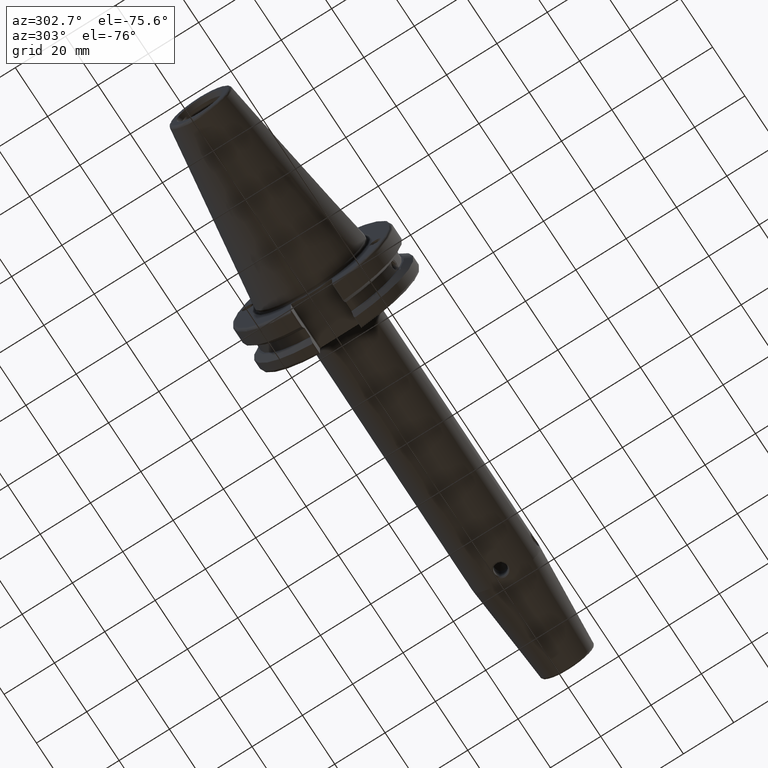
[diagram: clean part render]
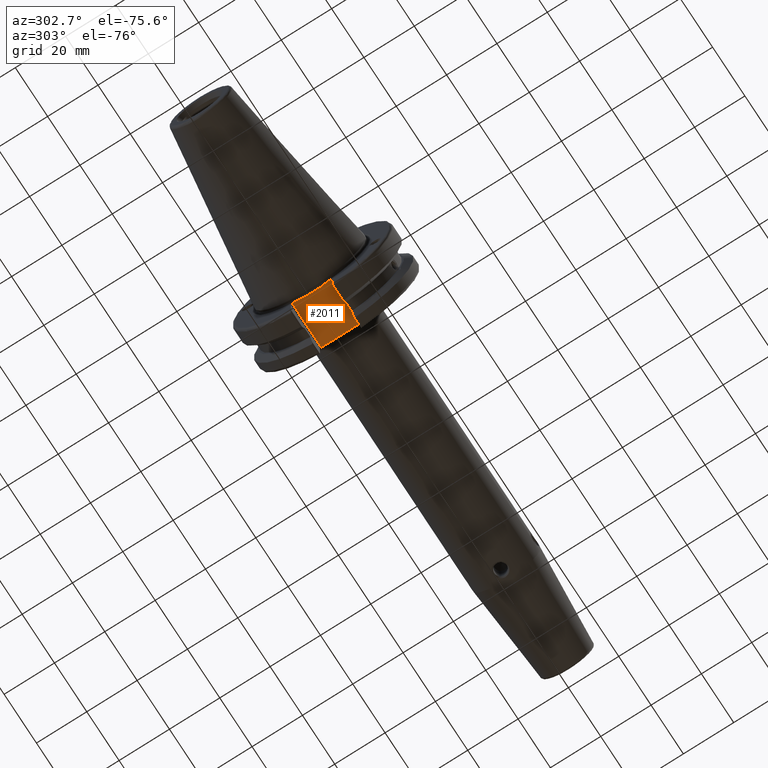
[diagram: same view with one face highlighted and labeled with its STEP entity id]
A machine part, auxiliary view. The second image highlights one B-rep face of the part: STEP entity #2011.
In plain terms, the highlighted planar face has unit normal (0, 0, 1).
Its self-contained STEP definition (entity closure, byte-faithful):
#28=(
BOUNDED_CURVE()
B_SPLINE_CURVE(2,(#4623,#4624,#4625),.UNSPECIFIED.,.F.,.F.)
B_SPLINE_CURVE_WITH_KNOTS((3,3),(0.,0.339841691449478),.UNSPECIFIED.)
CURVE()
GEOMETRIC_REPRESENTATION_ITEM()
RATIONAL_B_SPLINE_CURVE((1.,1.00266518417082,1.))
REPRESENTATION_ITEM('')
);
#29=(
BOUNDED_CURVE()
B_SPLINE_CURVE(2,(#4628,#4629,#4630),.UNSPECIFIED.,.F.,.F.)
B_SPLINE_CURVE_WITH_KNOTS((3,3),(0.,0.339841691449478),.UNSPECIFIED.)
CURVE()
GEOMETRIC_REPRESENTATION_ITEM()
RATIONAL_B_SPLINE_CURVE((1.,1.00266518417082,1.))
REPRESENTATION_ITEM('')
);
#74=PLANE('',#2235);
#232=FACE_OUTER_BOUND('',#365,.T.);
#365=EDGE_LOOP('',(#1747,#1748,#1749,#1750,#1751,#1752,#1753,#1754));
#427=LINE('',#3920,#544);
#490=LINE('',#4595,#607);
#491=LINE('',#4599,#608);
#495=LINE('',#4619,#612);
#496=LINE('',#4621,#613);
#497=LINE('',#4627,#614);
#544=VECTOR('',#2405,10.);
#607=VECTOR('',#2692,10.);
#608=VECTOR('',#2695,10.);
#612=VECTOR('',#2721,10.);
#613=VECTOR('',#2724,10.);
#614=VECTOR('',#2725,10.);
#839=VERTEX_POINT('',#3917);
#840=VERTEX_POINT('',#3919);
#957=VERTEX_POINT('',#4592);
#958=VERTEX_POINT('',#4594);
#959=VERTEX_POINT('',#4596);
#960=VERTEX_POINT('',#4598);
#966=VERTEX_POINT('',#4622);
#967=VERTEX_POINT('',#4626);
#1061=EDGE_CURVE('',#839,#840,#427,.T.);
#1231=EDGE_CURVE('',#957,#958,#490,.T.);
#1233=EDGE_CURVE('',#959,#960,#491,.T.);
#1243=EDGE_CURVE('',#840,#957,#495,.T.);
#1244=EDGE_CURVE('',#960,#839,#496,.T.);
#1245=EDGE_CURVE('',#966,#959,#28,.T.);
#1246=EDGE_CURVE('',#967,#966,#497,.T.);
#1247=EDGE_CURVE('',#958,#967,#29,.T.);
#1747=ORIENTED_EDGE('',*,*,#1243,.F.);
#1748=ORIENTED_EDGE('',*,*,#1061,.F.);
#1749=ORIENTED_EDGE('',*,*,#1244,.F.);
#1750=ORIENTED_EDGE('',*,*,#1233,.F.);
#1751=ORIENTED_EDGE('',*,*,#1245,.F.);
#1752=ORIENTED_EDGE('',*,*,#1246,.F.);
#1753=ORIENTED_EDGE('',*,*,#1247,.F.);
#1754=ORIENTED_EDGE('',*,*,#1231,.F.);
#2011=ADVANCED_FACE('',(#232),#74,.F.);
#2235=AXIS2_PLACEMENT_3D('',#4620,#2722,#2723);
#2405=DIRECTION('',(0.,1.,0.));
#2692=DIRECTION('',(0.,-1.,0.));
#2695=DIRECTION('',(0.,-1.,0.));
#2721=DIRECTION('',(-1.,-1.16558847729675E-16,0.));
#2722=DIRECTION('center_axis',(0.,0.,1.));
#2723=DIRECTION('ref_axis',(1.,0.,0.));
#2724=DIRECTION('',(1.,0.,0.));
#2725=DIRECTION('',(0.,-1.,0.));
#3917=CARTESIAN_POINT('',(19.05,-7.69,-22.6));
#3919=CARTESIAN_POINT('',(19.05,7.69,-22.6));
#3920=CARTESIAN_POINT('',(19.05,-2.77555756156289E-16,-22.6));
#4592=CARTESIAN_POINT('',(1.,7.69,-22.6));
#4594=CARTESIAN_POINT('',(0.999999999999997,6.4412731660752,-22.6));
#4595=CARTESIAN_POINT('',(1.,15.875,-22.6));
#4596=CARTESIAN_POINT('',(1.,-6.44127316607517,-22.6));
#4598=CARTESIAN_POINT('',(1.,-7.69,-22.6));
#4599=CARTESIAN_POINT('',(1.,15.875,-22.6));
#4619=CARTESIAN_POINT('',(7.81,7.69,-22.6));
#4620=CARTESIAN_POINT('Origin',(14.62,-5.55111512312578E-16,-22.6));
#4621=CARTESIAN_POINT('',(17.335,-7.69,-22.6));
#4622=CARTESIAN_POINT('',(1.4,-3.06715581894774,-22.6));
#4623=CARTESIAN_POINT('Ctrl Pts',(1.4,-3.06715581894779,-22.6));
#4624=CARTESIAN_POINT('Ctrl Pts',(1.27097107950098,-4.72897372977579,-22.6));
#4625=CARTESIAN_POINT('Ctrl Pts',(0.999999999999999,-6.44127316607519,-22.6));
#4626=CARTESIAN_POINT('',(1.4,3.06715581894774,-22.6));
#4627=CARTESIAN_POINT('',(1.4,11.4035898384862,-22.6));
#4628=CARTESIAN_POINT('Ctrl Pts',(0.999999999999999,6.44127316607519,-22.6));
#4629=CARTESIAN_POINT('Ctrl Pts',(1.27097107950098,4.72897372977579,-22.6));
#4630=CARTESIAN_POINT('Ctrl Pts',(1.4,3.06715581894779,-22.6));